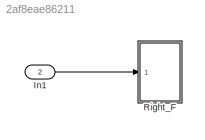
MODEL slx_2af8eae86211
KIND model
CONFIG AbsTol = auto
CONFIG EnableMultiTasking = off
CONFIG FixedStep = auto
CONFIG MaxStep = auto
CONFIG MinStep = auto
CONFIG RelTol = 1e-3
CONFIG SampleTimeConstraint = Unconstrained
CONFIG SolverName = VariableStepAuto
CONFIG StartTime = 0.0
CONFIG StopTime = 10.0
BLOCK [Inport] In1
  Port = 2
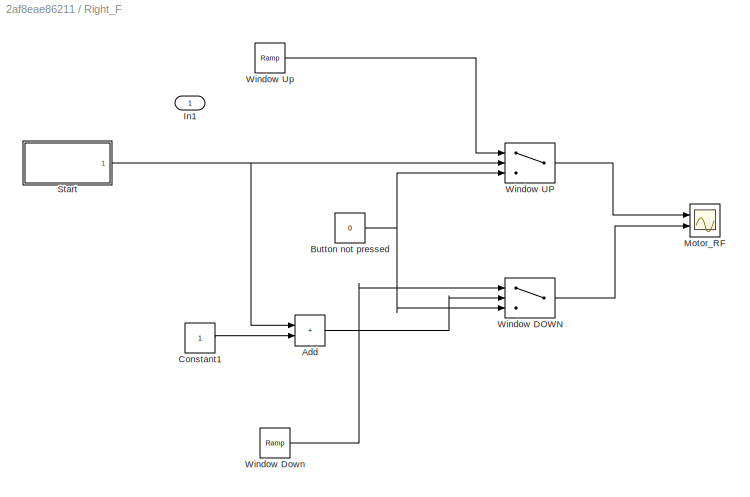
BLOCK [SubSystem] Right_F
  Ports = [1]
  RequestExecContextInheritance = off
BLOCK [Sum] Right_F/Add
  IconShape = rectangular
  Ports = [2, 1]
BLOCK [Constant] Right_F/Button not pressed
  Value = 0
BLOCK [Constant] Right_F/Constant1
BLOCK [Inport] Right_F/In1
BLOCK [Scope] Right_F/Motor_RF
  Floating = off
  NumInputPorts = 2
  Ports = [2]
  ScopeSpecificationString = Simulink.scopes.TimeScopeBlockCfg('CurrentConfiguration', extmgr.ConfigurationSet(extmgr.Configuration('Core','General UI',true),extmgr.Configuration('Core','Source UI',true),extmgr.Configuration('Sources','WiredSimulink',true),extmgr.Configuration('Visuals','Time Domain',true,'SerializedDisplays',{struct('MinYLimReal','-0.75','MaxYLimReal','6.75','YLabelReal','','MinYLimMag','0.00000','MaxYLimMag...<+2070ch>
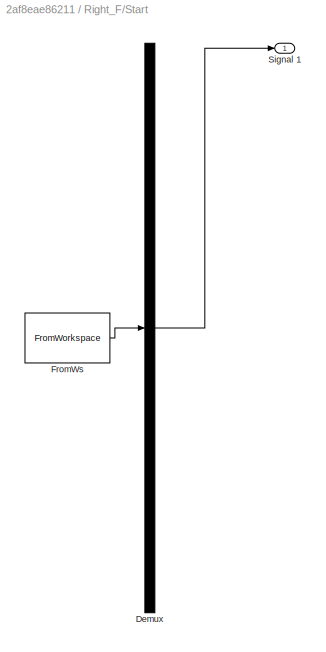
BLOCK [SubSystem] Right_F/Start
  ClipboardFcn = sigbuilder_block('clipboard');
  CloseFcn = sigbuilder_block('close');
  ContinueFcn = sigbuilder_block('continue');
  CopyFcn = sigbuilder_block('copy');
  DeleteFcn = sigbuilder_block('delete');
  LoadFcn = sigbuilder_block('load');
  MaskHideContents = on
  ModelCloseFcn = sigbuilder_block('modelClose');
  NameChangeFcn = sigbuilder_block('namechange');
  OpenFcn = sigbuilder_block('open',[437.6 199.2 550.4 400 ]);
  PauseFcn = sigbuilder_block('pause');
  Ports = [0, 1]
  PreSaveFcn = sigbuilder_block('preSave');
  RequestExecContextInheritance = off
  StartFcn = sigbuilder_block('start');
  StopFcn = sigbuilder_block('stop');
  Tag = STV Subsys
BLOCK [Demux] Right_F/Start/Demux
  DisplayOption = none
  Outputs = 1
  Ports = [1, 1]
  Tag = STV Demux
BLOCK [FromWorkspace] Right_F/Start/FromWs
  Tag = STV FromWs
  VariableName = tuvar
BLOCK [Outport] Right_F/Start/Signal 1
  Tag = STV Outport
BLOCK [Switch] Right_F/Window DOWN
  InputSameDT = off
  SaturateOnIntegerOverflow = off
BLOCK [Reference] Right_F/Window Down  REF=simulink/Sources/Ramp
  Ports = [0, 1]
  SourceBlock = simulink/Sources/Ramp
  SourceProductBaseCode = SL
  SourceType = Ramp
BLOCK [Switch] Right_F/Window UP
  Criteria = u2 > Threshold
  InputSameDT = off
  SaturateOnIntegerOverflow = off
BLOCK [Reference] Right_F/Window Up  REF=simulink/Sources/Ramp
  Ports = [0, 1]
  SourceBlock = simulink/Sources/Ramp
  SourceProductBaseCode = SL
  SourceType = Ramp
LINE In1:1 -> Right_F:1
LINE Right_F/Add:1 -> Right_F/Window DOWN:2
NET Right_F/Button not pressed:1 -> Right_F/Window DOWN:3, Right_F/Window UP:3
LINE Right_F/Constant1:1 -> Right_F/Add:2
NET Right_F/Start:1 -> Right_F/Add:1, Right_F/Window UP:2
LINE Right_F/Window DOWN:1 -> Right_F/Motor_RF:2
LINE Right_F/Window Down:1 -> Right_F/Window DOWN:1
LINE Right_F/Window UP:1 -> Right_F/Motor_RF:1
LINE Right_F/Window Up:1 -> Right_F/Window UP:1
note: NET lines group one-source signal fan-out (src -> all destinations, sorted); 1:1 wires keep LINE
